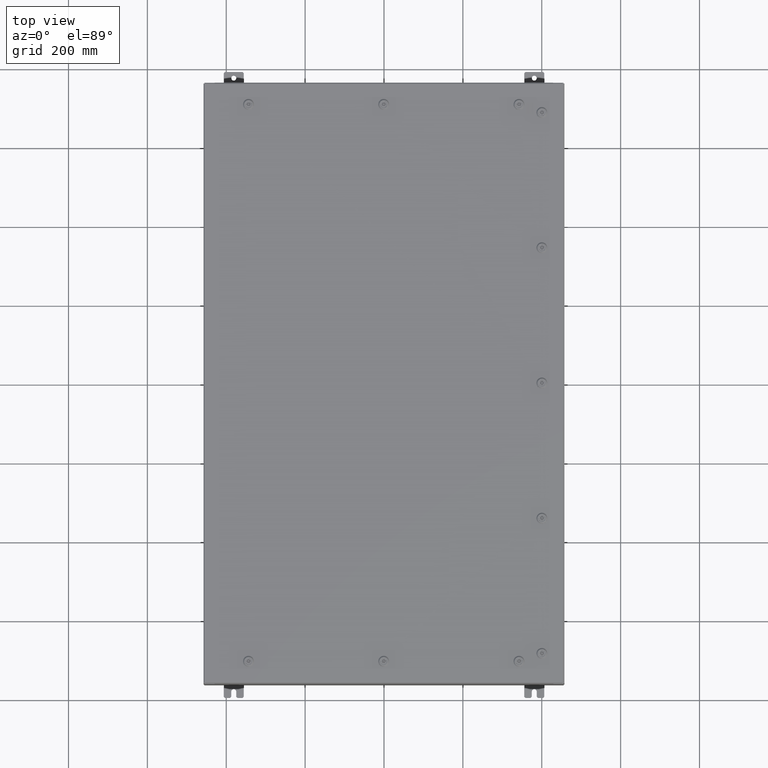
[diagram: clean part render]
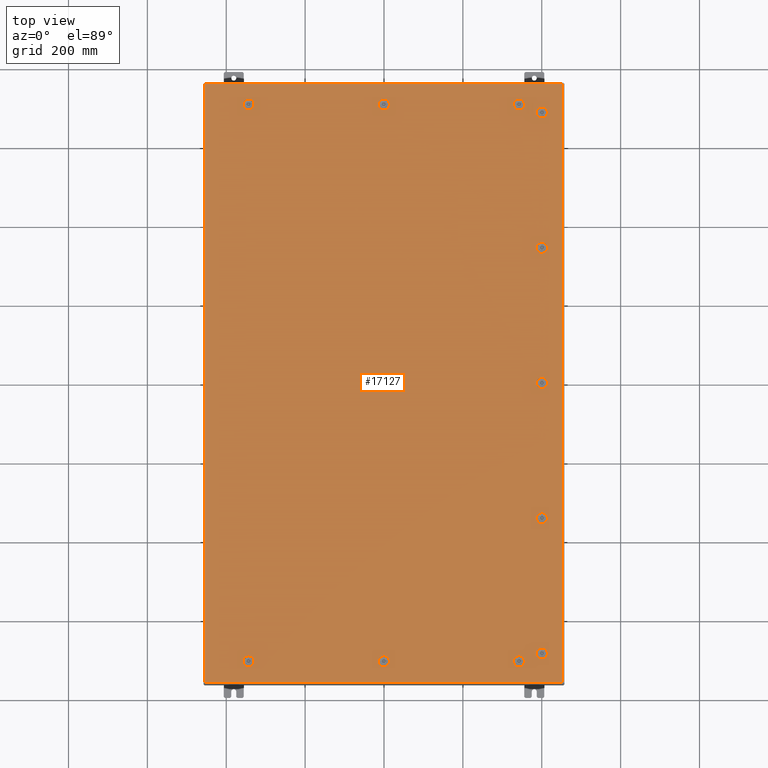
[diagram: same view with one face highlighted and labeled with its STEP entity id]
A machine part, top view. The second image highlights one B-rep face of the part: STEP entity #17127.
In plain terms, the highlighted planar face has unit normal (0, 0, -1).
Its self-contained STEP definition (entity closure, byte-faithful):
#36 = CARTESIAN_POINT ( 'NONE',  ( 15.39280000000001900, 27.19945237526790300, 0.0000000000000000000 ) ) ;
#152 = DIRECTION ( 'NONE',  ( 1.095739467627844000E-014, -1.000000000000000000, -6.982962677686306200E-015 ) ) ;
#209 = EDGE_CURVE ( 'NONE', #62549, #59928, #27118, .T. ) ;
#340 = AXIS2_PLACEMENT_3D ( 'NONE', #5066, #42577, #10474 ) ;
#358 = CIRCLE ( 'NONE', #11959, 0.4424999999999983400 ) ;
#553 = CARTESIAN_POINT ( 'NONE',  ( -17.84979999999999800, -29.84979999999999500, 1.946441695485787500E-015 ) ) ;
#595 = CARTESIAN_POINT ( 'NONE',  ( -13.05749999999998900, 27.78780000000000100, 0.0000000000000000000 ) ) ;
#1042 = LINE ( 'NONE', #36489, #40522 ) ;
#1228 = ORIENTED_EDGE ( 'NONE', *, *, #59585, .F. ) ;
#1241 = CARTESIAN_POINT ( 'NONE',  ( -17.84979999999998100, 29.84980000000000500, 4.166068190338001500E-015 ) ) ;
#1358 = AXIS2_PLACEMENT_3D ( 'NONE', #25242, #62558, #30596 ) ;
#1623 = AXIS2_PLACEMENT_3D ( 'NONE', #46235, #14171, #51555 ) ;
#1658 = DIRECTION ( 'NONE',  ( 0.0000000000000000000, 0.0000000000000000000, 1.000000000000000000 ) ) ;
#1687 = EDGE_CURVE ( 'NONE', #6727, #30833, #53024, .T. ) ;
#1705 = DIRECTION ( 'NONE',  ( -0.0000000000000000000, -6.982962677686266700E-015, 1.000000000000000000 ) ) ;
#1752 = LINE ( 'NONE', #16557, #11019 ) ;
#1816 = EDGE_LOOP ( 'NONE', ( #47234, #13913, #17812, #54301, #37466 ) ) ;
#1887 = CARTESIAN_POINT ( 'NONE',  ( 13.49999999999998600, -27.78780000000000800, -1.578617423656501800E-013 ) ) ;
#2322 = VERTEX_POINT ( 'NONE', #595 ) ;
#2544 = CARTESIAN_POINT ( 'NONE',  ( 13.30054762473209400, 28.18279999999999300, -9.287722765629296100E-014 ) ) ;
#2676 = DIRECTION ( 'NONE',  ( 0.0000000000000000000, 0.0000000000000000000, 1.000000000000000000 ) ) ;
#3014 = LINE ( 'NONE', #17230, #28202 ) ;
#3244 = DIRECTION ( 'NONE',  ( 0.0000000000000000000, 0.0000000000000000000, 1.000000000000000000 ) ) ;
#3266 = EDGE_CURVE ( 'NONE', #59928, #66190, #26927, .T. ) ;
#3736 = ORIENTED_EDGE ( 'NONE', *, *, #34164, .F. ) ;
#3991 = CARTESIAN_POINT ( 'NONE',  ( 13.30054762473209400, 28.18279999999999300, -9.287722765629296100E-014 ) ) ;
#4288 = ORIENTED_EDGE ( 'NONE', *, *, #31045, .F. ) ;
#4404 = ORIENTED_EDGE ( 'NONE', *, *, #44111, .F. ) ;
#4462 = CARTESIAN_POINT ( 'NONE',  ( 16.18280000000001100, -27.19945237526789600, -1.899327607900007900E-013 ) ) ;
#4602 = AXIS2_PLACEMENT_3D ( 'NONE', #1887, #39432, #7322 ) ;
#4802 = VERTEX_POINT ( 'NONE', #7682 ) ;
#4852 = CARTESIAN_POINT ( 'NONE',  ( 13.94249999999998500, -27.78780000000000800, -1.547717813807740000E-013 ) ) ;
#4965 = ORIENTED_EDGE ( 'NONE', *, *, #61527, .F. ) ;
#5019 = DIRECTION ( 'NONE',  ( -1.000000000000000000, 0.0000000000000000000, 6.982962677686269100E-015 ) ) ;
#5066 = CARTESIAN_POINT ( 'NONE',  ( 15.78780000000000600, 1.529834876451990400E-014, 0.0000000000000000000 ) ) ;
#5493 = DIRECTION ( 'NONE',  ( -1.000000000000000000, 1.095739467627836100E-014, 0.0000000000000000000 ) ) ;
#5836 = CARTESIAN_POINT ( 'NONE',  ( 15.39280000000002100, -13.69945237526790600, -9.566276464123621500E-014 ) ) ;
#5885 = CIRCLE ( 'NONE', #31582, 0.4424999999999983400 ) ;
#6119 = EDGE_CURVE ( 'NONE', #36924, #21264, #41801, .T. ) ;
#6373 = CARTESIAN_POINT ( 'NONE',  ( -0.1994523752678689600, 27.39280000000000500, 0.0000000000000000000 ) ) ;
#6420 = VECTOR ( 'NONE', #26826, 39.37007874015748100 ) ;
#6423 = VERTEX_POINT ( 'NONE', #38364 ) ;
#6658 = VERTEX_POINT ( 'NONE', #21091 ) ;
#6662 = VERTEX_POINT ( 'NONE', #66023 ) ;
#6727 = VERTEX_POINT ( 'NONE', #38147 ) ;
#6842 = CIRCLE ( 'NONE', #30556, 0.4424999999999972800 ) ;
#6849 = VERTEX_POINT ( 'NONE', #43309 ) ;
#6961 = FACE_BOUND ( 'NONE', #22829, .T. ) ;
#7038 = LINE ( 'NONE', #38637, #35569 ) ;
#7257 = DIRECTION ( 'NONE',  ( -0.0000000000000000000, -6.982962677686266700E-015, 1.000000000000000000 ) ) ;
#7260 = EDGE_CURVE ( 'NONE', #58493, #27125, #44228, .T. ) ;
#7269 = DIRECTION ( 'NONE',  ( 0.0000000000000000000, 1.000000000000000000, 6.982962677686270700E-015 ) ) ;
#7322 = DIRECTION ( 'NONE',  ( 1.000000000000000000, 0.0000000000000000000, 6.982962677686270700E-015 ) ) ;
#7455 = ORIENTED_EDGE ( 'NONE', *, *, #43060, .F. ) ;
#7539 = CARTESIAN_POINT ( 'NONE',  ( 1.529834876451987200E-014, 27.78780000000000100, 0.0000000000000000000 ) ) ;
#7583 = AXIS2_PLACEMENT_3D ( 'NONE', #34841, #2676, #40235 ) ;
#7682 = CARTESIAN_POINT ( 'NONE',  ( 16.18280000000000700, -13.69945237526790100, -9.566276464123617700E-014 ) ) ;
#7790 = CARTESIAN_POINT ( 'NONE',  ( 13.30054762473210400, -27.39280000000001500, -1.564962406004356200E-013 ) ) ;
#7948 = CIRCLE ( 'NONE', #54958, 0.4424999999999961700 ) ;
#7965 = CARTESIAN_POINT ( 'NONE',  ( 13.49999999999998600, 27.78780000000000100, -9.426999614876453700E-014 ) ) ;
#8122 = EDGE_CURVE ( 'NONE', #16469, #48698, #9785, .T. ) ;
#8305 = CARTESIAN_POINT ( 'NONE',  ( 16.18280000000000000, 0.1994523752679009100, 0.0000000000000000000 ) ) ;
#8818 = CARTESIAN_POINT ( 'NONE',  ( 13.30054762473209500, -28.18280000000000400, -1.620127811158077400E-013 ) ) ;
#9761 = DIRECTION ( 'NONE',  ( -1.095739467627836100E-014, -1.000000000000000000, 0.0000000000000000000 ) ) ;
#9785 = LINE ( 'NONE', #8818, #61612 ) ;
#9836 = AXIS2_PLACEMENT_3D ( 'NONE', #54811, #22808, #60165 ) ;
#9919 = CARTESIAN_POINT ( 'NONE',  ( 0.1994523752678995500, 27.39280000000000500, 0.0000000000000000000 ) ) ;
#9934 = CARTESIAN_POINT ( 'NONE',  ( 0.1994523752678995500, 27.39280000000000500, 0.0000000000000000000 ) ) ;
#9943 = EDGE_LOOP ( 'NONE', ( #37891, #3736, #53934, #64077, #35686 ) ) ;
#10474 = DIRECTION ( 'NONE',  ( 1.000000000000000000, 0.0000000000000000000, 0.0000000000000000000 ) ) ;
#10693 = CARTESIAN_POINT ( 'NONE',  ( 16.18280000000000700, -13.69945237526790100, -9.566276464123617700E-014 ) ) ;
#11019 = VECTOR ( 'NONE', #48368, 39.37007874015748100 ) ;
#11023 = EDGE_CURVE ( 'NONE', #13182, #6662, #7038, .T. ) ;
#11216 = ORIENTED_EDGE ( 'NONE', *, *, #21312, .F. ) ;
#11269 = CARTESIAN_POINT ( 'NONE',  ( 0.1994523752678995500, -27.39280000000000500, -2.493734682567286900E-013 ) ) ;
#11307 = CIRCLE ( 'NONE', #41366, 0.4424999999999983400 ) ;
#11504 = LINE ( 'NONE', #23507, #66612 ) ;
#11959 = AXIS2_PLACEMENT_3D ( 'NONE', #23178, #60543, #28574 ) ;
#11998 = FACE_BOUND ( 'NONE', #21721, .T. ) ;
#12360 = VERTEX_POINT ( 'NONE', #36509 ) ;
#12444 = EDGE_LOOP ( 'NONE', ( #50582, #57868, #54092, #44508, #1228 ) ) ;
#12588 = VERTEX_POINT ( 'NONE', #60214 ) ;
#12619 = DIRECTION ( 'NONE',  ( 0.0000000000000000000, 0.0000000000000000000, 1.000000000000000000 ) ) ;
#12677 = VECTOR ( 'NONE', #51803, 39.37007874015748100 ) ;
#12704 = LINE ( 'NONE', #10693, #41237 ) ;
#12906 = EDGE_CURVE ( 'NONE', #12588, #37703, #34941, .T. ) ;
#12932 = DIRECTION ( 'NONE',  ( 1.000000000000000000, 0.0000000000000000000, 0.0000000000000000000 ) ) ;
#13053 = EDGE_CURVE ( 'NONE', #66190, #6423, #3014, .T. ) ;
#13079 = VERTEX_POINT ( 'NONE', #54816 ) ;
#13127 = AXIS2_PLACEMENT_3D ( 'NONE', #60734, #28782, #66060 ) ;
#13182 = VERTEX_POINT ( 'NONE', #11269 ) ;
#13356 = DIRECTION ( 'NONE',  ( -1.000000000000000000, 0.0000000000000000000, 6.982962677686270700E-015 ) ) ;
#13469 = CARTESIAN_POINT ( 'NONE',  ( -13.30054762473210200, 27.39280000000000500, 0.0000000000000000000 ) ) ;
#13625 = LINE ( 'NONE', #63338, #27850 ) ;
#13913 = ORIENTED_EDGE ( 'NONE', *, *, #50103, .F. ) ;
#14142 = LINE ( 'NONE', #9934, #40968 ) ;
#14171 = DIRECTION ( 'NONE',  ( -0.0000000000000000000, -6.982962677686266700E-015, 1.000000000000000000 ) ) ;
#14221 = ORIENTED_EDGE ( 'NONE', *, *, #58153, .F. ) ;
#14297 = CARTESIAN_POINT ( 'NONE',  ( 15.39280000000001400, 26.80054762473213300, 0.0000000000000000000 ) ) ;
#14399 = VERTEX_POINT ( 'NONE', #48638 ) ;
#14663 = EDGE_CURVE ( 'NONE', #38152, #25227, #36488, .T. ) ;
#14863 = CARTESIAN_POINT ( 'NONE',  ( 0.1994523752679054600, 28.18279999999999300, 0.0000000000000000000 ) ) ;
#14866 = AXIS2_PLACEMENT_3D ( 'NONE', #56125, #67446, #7269 ) ;
#14938 = EDGE_CURVE ( 'NONE', #48698, #19499, #29739, .T. ) ;
#15068 = CARTESIAN_POINT ( 'NONE',  ( 15.39280000000001400, 13.30054762473213400, 0.0000000000000000000 ) ) ;
#15362 = CARTESIAN_POINT ( 'NONE',  ( 16.18280000000001100, -27.19945237526789600, -1.899327607900007900E-013 ) ) ;
#15442 = DIRECTION ( 'NONE',  ( -1.000000000000000000, -1.095739467627832000E-014, 6.982962677686228800E-015 ) ) ;
#15485 = AXIS2_PLACEMENT_3D ( 'NONE', #35401, #3244, #40797 ) ;
#15582 = CARTESIAN_POINT ( 'NONE',  ( 17.84979999999999800, 29.84980000000001300, 1.946441695485787500E-015 ) ) ;
#15732 = CARTESIAN_POINT ( 'NONE',  ( -13.30054762473210200, 27.39280000000000500, 0.0000000000000000000 ) ) ;
#16407 = VECTOR ( 'NONE', #23777, 39.37007874015748100 ) ;
#16469 = VERTEX_POINT ( 'NONE', #45503 ) ;
#16557 = CARTESIAN_POINT ( 'NONE',  ( -13.30054762473209400, 28.18279999999999300, 0.0000000000000000000 ) ) ;
#16578 = ORIENTED_EDGE ( 'NONE', *, *, #24363, .F. ) ;
#16726 = CARTESIAN_POINT ( 'NONE',  ( 13.69945237526786700, 28.18280000000000000, 0.0000000000000000000 ) ) ;
#17002 = DIRECTION ( 'NONE',  ( -0.0000000000000000000, -6.982962677686266700E-015, 1.000000000000000000 ) ) ;
#17003 = CARTESIAN_POINT ( 'NONE',  ( -17.84979999999998100, 29.84980000000000500, 4.166068190338001500E-015 ) ) ;
#17127 = ADVANCED_FACE ( 'NONE', ( #37166, #51331, #65456, #11998, #63815, #49673, #35488, #21216, #6961, #62129, #48003, #33794 ), #24234, .F. ) ;
#17230 = CARTESIAN_POINT ( 'NONE',  ( 17.84979999999999800, -29.84979999999998800, -2.048885995248197400E-016 ) ) ;
#17384 = VERTEX_POINT ( 'NONE', #9919 ) ;
#17679 = CIRCLE ( 'NONE', #29326, 0.4424999999999961700 ) ;
#17697 = DIRECTION ( 'NONE',  ( 0.0000000000000000000, 0.0000000000000000000, 1.000000000000000000 ) ) ;
#17716 = DIRECTION ( 'NONE',  ( 1.000000000000000000, 1.095739467627832000E-014, 7.785697190085955000E-029 ) ) ;
#17812 = ORIENTED_EDGE ( 'NONE', *, *, #14938, .F. ) ;
#17895 = ORIENTED_EDGE ( 'NONE', *, *, #1687, .F. ) ;
#18259 = CARTESIAN_POINT ( 'NONE',  ( -0.1994523752678657400, -28.18280000000000400, 0.0000000000000000000 ) ) ;
#18379 = EDGE_CURVE ( 'NONE', #27635, #16469, #32829, .T. ) ;
#18391 = VERTEX_POINT ( 'NONE', #18259 ) ;
#18478 = LINE ( 'NONE', #15582, #45288 ) ;
#18514 = CARTESIAN_POINT ( 'NONE',  ( 16.18280000000000700, 26.80054762473213300, 0.0000000000000000000 ) ) ;
#18870 = DIRECTION ( 'NONE',  ( -5.478697338139280000E-015, 1.000000000000000000, -0.0000000000000000000 ) ) ;
#19239 = CARTESIAN_POINT ( 'NONE',  ( 13.69945237526787100, -27.39280000000001500, 0.0000000000000000000 ) ) ;
#19414 = ORIENTED_EDGE ( 'NONE', *, *, #20105, .T. ) ;
#19499 = VERTEX_POINT ( 'NONE', #4852 ) ;
#19583 = CARTESIAN_POINT ( 'NONE',  ( 15.39280000000002200, -27.19945237526790300, -1.899327607900007900E-013 ) ) ;
#19733 = VECTOR ( 'NONE', #17716, 39.37007874015748100 ) ;
#19822 = EDGE_CURVE ( 'NONE', #27125, #30430, #17679, .T. ) ;
#19887 = CIRCLE ( 'NONE', #24604, 0.4424999999999983400 ) ;
#19927 = CARTESIAN_POINT ( 'NONE',  ( 0.1994523752679067700, -28.18279999999999300, -2.548900087721007400E-013 ) ) ;
#20040 = EDGE_CURVE ( 'NONE', #29317, #6849, #5885, .T. ) ;
#20105 = EDGE_CURVE ( 'NONE', #6423, #62549, #18478, .T. ) ;
#20323 = CIRCLE ( 'NONE', #67034, 0.4424999999999983400 ) ;
#20462 = EDGE_LOOP ( 'NONE', ( #61124, #17895, #61023, #67328 ) ) ;
#20711 = DIRECTION ( 'NONE',  ( 1.000000000000000000, -0.0000000000000000000, -0.0000000000000000000 ) ) ;
#20856 = DIRECTION ( 'NONE',  ( 1.000000000000000000, 0.0000000000000000000, -6.982962677686306200E-015 ) ) ;
#21091 = CARTESIAN_POINT ( 'NONE',  ( -13.69945237526787100, -27.39280000000001900, -2.493734682567286400E-013 ) ) ;
#21151 = CARTESIAN_POINT ( 'NONE',  ( 0.4425000000000125500, 27.78780000000000100, 0.0000000000000000000 ) ) ;
#21216 = FACE_BOUND ( 'NONE', #9943, .T. ) ;
#21264 = VERTEX_POINT ( 'NONE', #15362 ) ;
#21312 = EDGE_CURVE ( 'NONE', #17384, #53570, #23509, .T. ) ;
#21433 = CARTESIAN_POINT ( 'NONE',  ( 13.69945237526786900, 27.39280000000000500, -9.566276464123603800E-014 ) ) ;
#21721 = EDGE_LOOP ( 'NONE', ( #4288, #47137, #60482, #14221 ) ) ;
#21778 = ORIENTED_EDGE ( 'NONE', *, *, #48891, .F. ) ;
#21787 = CARTESIAN_POINT ( 'NONE',  ( 15.39280000000002200, -27.19945237526790300, -1.899327607900008200E-013 ) ) ;
#22050 = EDGE_CURVE ( 'NONE', #18391, #29317, #30144, .T. ) ;
#22808 = DIRECTION ( 'NONE',  ( -6.982962677686266700E-015, -6.982962677686266700E-015, 1.000000000000000000 ) ) ;
#22829 = EDGE_LOOP ( 'NONE', ( #52168, #54886, #57019, #53463, #56916 ) ) ;
#23178 = CARTESIAN_POINT ( 'NONE',  ( -13.49999999999998600, 27.78780000000000100, 0.0000000000000000000 ) ) ;
#23465 = CARTESIAN_POINT ( 'NONE',  ( 15.78780000000001300, -13.50000000000001800, -9.426999614876466400E-014 ) ) ;
#23507 = CARTESIAN_POINT ( 'NONE',  ( 16.18280000000000700, 13.69945237526790100, 0.0000000000000000000 ) ) ;
#23509 = CIRCLE ( 'NONE', #52658, 0.4424999999999972800 ) ;
#23768 = CARTESIAN_POINT ( 'NONE',  ( -13.30054762473209500, -28.18280000000000700, -2.548900087721007400E-013 ) ) ;
#23771 = ORIENTED_EDGE ( 'NONE', *, *, #13053, .T. ) ;
#23777 = DIRECTION ( 'NONE',  ( -1.095739467627838000E-014, -1.000000000000000000, 0.0000000000000000000 ) ) ;
#23783 = DIRECTION ( 'NONE',  ( 0.0000000000000000000, 0.0000000000000000000, 1.000000000000000000 ) ) ;
#24019 = DIRECTION ( 'NONE',  ( -0.0000000000000000000, -6.982962677686266700E-015, 1.000000000000000000 ) ) ;
#24234 = PLANE ( 'NONE',  #52048 ) ;
#24293 = EDGE_CURVE ( 'NONE', #4802, #6727, #12704, .T. ) ;
#24363 = EDGE_CURVE ( 'NONE', #40947, #66882, #1752, .T. ) ;
#24604 = AXIS2_PLACEMENT_3D ( 'NONE', #49040, #17002, #54373 ) ;
#24710 = EDGE_CURVE ( 'NONE', #34340, #27635, #56156, .T. ) ;
#24800 = CARTESIAN_POINT ( 'NONE',  ( 15.78780000000001000, 27.00000000000001400, 0.0000000000000000000 ) ) ;
#25178 = ORIENTED_EDGE ( 'NONE', *, *, #67378, .F. ) ;
#25227 = VERTEX_POINT ( 'NONE', #6373 ) ;
#25242 = CARTESIAN_POINT ( 'NONE',  ( 15.78780000000001500, -27.00000000000001400, -1.885399922975292500E-013 ) ) ;
#25527 = VECTOR ( 'NONE', #45560, 39.37007874015748100 ) ;
#25563 = DIRECTION ( 'NONE',  ( 5.478697338139280000E-015, 1.000000000000000000, 6.982962677686382700E-015 ) ) ;
#25604 = CIRCLE ( 'NONE', #64321, 0.4424999999999961700 ) ;
#26014 = DIRECTION ( 'NONE',  ( -1.000000000000000000, 0.0000000000000000000, 7.785697190086082800E-029 ) ) ;
#26099 = DIRECTION ( 'NONE',  ( -0.0000000000000000000, -6.982962677686266700E-015, 1.000000000000000000 ) ) ;
#26335 = EDGE_LOOP ( 'NONE', ( #35688, #63938, #34514, #44703, #11216 ) ) ;
#26351 = DIRECTION ( 'NONE',  ( 0.0000000000000000000, 0.0000000000000000000, 1.000000000000000000 ) ) ;
#26445 = EDGE_CURVE ( 'NONE', #56153, #36433, #32654, .T. ) ;
#26704 = ORIENTED_EDGE ( 'NONE', *, *, #65097, .F. ) ;
#26826 = DIRECTION ( 'NONE',  ( -1.095739467627844000E-014, -1.000000000000000000, 0.0000000000000000000 ) ) ;
#26841 = CARTESIAN_POINT ( 'NONE',  ( 0.1994523752679067700, 28.18279999999999300, 0.0000000000000000000 ) ) ;
#26927 = LINE ( 'NONE', #553, #12677 ) ;
#27013 = VERTEX_POINT ( 'NONE', #36462 ) ;
#27118 = LINE ( 'NONE', #1241, #39696 ) ;
#27125 = VERTEX_POINT ( 'NONE', #47650 ) ;
#27329 = ORIENTED_EDGE ( 'NONE', *, *, #3266, .T. ) ;
#27635 = VERTEX_POINT ( 'NONE', #7790 ) ;
#27731 = CARTESIAN_POINT ( 'NONE',  ( -13.30054762473210400, -27.39280000000001900, -2.493734682567286900E-013 ) ) ;
#27850 = VECTOR ( 'NONE', #26014, 39.37007874015748100 ) ;
#28085 = EDGE_CURVE ( 'NONE', #25227, #17384, #14142, .T. ) ;
#28202 = VECTOR ( 'NONE', #44151, 39.37007874015748100 ) ;
#28343 = CARTESIAN_POINT ( 'NONE',  ( -13.69945237526786900, -28.18280000000001100, 0.0000000000000000000 ) ) ;
#28574 = DIRECTION ( 'NONE',  ( 1.000000000000000000, 0.0000000000000000000, 0.0000000000000000000 ) ) ;
#28648 = CARTESIAN_POINT ( 'NONE',  ( 13.49999999999998600, 27.78780000000000100, -9.426999614876453700E-014 ) ) ;
#28764 = AXIS2_PLACEMENT_3D ( 'NONE', #33825, #1658, #39203 ) ;
#28782 = DIRECTION ( 'NONE',  ( -6.982962677686266700E-015, -6.982962677686266700E-015, 1.000000000000000000 ) ) ;
#28860 = DIRECTION ( 'NONE',  ( 0.0000000000000000000, 1.000000000000000000, 6.982962677686269100E-015 ) ) ;
#28904 = CIRCLE ( 'NONE', #56850, 0.4424999999999961700 ) ;
#28942 = DIRECTION ( 'NONE',  ( 6.982962677686266700E-015, -0.0000000000000000000, 1.000000000000000000 ) ) ;
#29030 = VERTEX_POINT ( 'NONE', #60393 ) ;
#29299 = ORIENTED_EDGE ( 'NONE', *, *, #53311, .F. ) ;
#29317 = VERTEX_POINT ( 'NONE', #62908 ) ;
#29326 = AXIS2_PLACEMENT_3D ( 'NONE', #60897, #28942, #66222 ) ;
#29363 = VERTEX_POINT ( 'NONE', #15068 ) ;
#29380 = LINE ( 'NONE', #48686, #31043 ) ;
#29514 = VERTEX_POINT ( 'NONE', #68901 ) ;
#29614 = DIRECTION ( 'NONE',  ( -1.000000000000000000, 0.0000000000000000000, -0.0000000000000000000 ) ) ;
#29682 = CARTESIAN_POINT ( 'NONE',  ( 16.18280000000001500, -26.80054762473213300, -1.871472238050577400E-013 ) ) ;
#29739 = CIRCLE ( 'NONE', #9836, 0.4424999999999983400 ) ;
#30144 = LINE ( 'NONE', #19927, #58584 ) ;
#30172 = DIRECTION ( 'NONE',  ( 1.000000000000000000, 0.0000000000000000000, 0.0000000000000000000 ) ) ;
#30430 = VERTEX_POINT ( 'NONE', #16726 ) ;
#30462 = CARTESIAN_POINT ( 'NONE',  ( 1.529834876451987200E-014, -27.78780000000000100, -2.521317385144146900E-013 ) ) ;
#30556 = AXIS2_PLACEMENT_3D ( 'NONE', #7539, #45031, #12932 ) ;
#30596 = DIRECTION ( 'NONE',  ( 0.0000000000000000000, 1.000000000000000000, 6.982962677686270700E-015 ) ) ;
#30745 = EDGE_CURVE ( 'NONE', #6658, #38730, #19887, .T. ) ;
#30833 = VERTEX_POINT ( 'NONE', #54595 ) ;
#30882 = CARTESIAN_POINT ( 'NONE',  ( -13.49999999999998600, 27.78780000000000100, 0.0000000000000000000 ) ) ;
#31043 = VECTOR ( 'NONE', #20856, 39.37007874015748100 ) ;
#31045 = EDGE_CURVE ( 'NONE', #13079, #39965, #11504, .T. ) ;
#31582 = AXIS2_PLACEMENT_3D ( 'NONE', #58087, #26099, #63420 ) ;
#31972 = VECTOR ( 'NONE', #15442, 39.37007874015748100 ) ;
#32447 = LINE ( 'NONE', #21787, #59176 ) ;
#32567 = AXIS2_PLACEMENT_3D ( 'NONE', #28648, #46121, #5019 ) ;
#32654 = CIRCLE ( 'NONE', #340, 0.4424999999999983400 ) ;
#32757 = DIRECTION ( 'NONE',  ( 1.095739467627838000E-014, -1.000000000000000000, -6.982962677686269100E-015 ) ) ;
#32829 = CIRCLE ( 'NONE', #13127, 0.4424999999999961700 ) ;
#33017 = CARTESIAN_POINT ( 'NONE',  ( -13.30054762473209400, 28.18279999999999300, 0.0000000000000000000 ) ) ;
#33794 = FACE_OUTER_BOUND ( 'NONE', #53352, .T. ) ;
#33825 = CARTESIAN_POINT ( 'NONE',  ( 15.78780000000001000, 13.50000000000001800, 0.0000000000000000000 ) ) ;
#33870 = CARTESIAN_POINT ( 'NONE',  ( 1.529834876451987200E-014, -27.78780000000000100, -2.521317385144146900E-013 ) ) ;
#34011 = LINE ( 'NONE', #61129, #16407 ) ;
#34164 = EDGE_CURVE ( 'NONE', #6662, #18391, #11307, .T. ) ;
#34340 = VERTEX_POINT ( 'NONE', #19239 ) ;
#34514 = ORIENTED_EDGE ( 'NONE', *, *, #62437, .F. ) ;
#34765 = LINE ( 'NONE', #13469, #25527 ) ;
#34841 = CARTESIAN_POINT ( 'NONE',  ( 1.529834876451987200E-014, 27.78780000000000100, 0.0000000000000000000 ) ) ;
#34941 = LINE ( 'NONE', #36, #6420 ) ;
#35049 = VERTEX_POINT ( 'NONE', #14863 ) ;
#35401 = CARTESIAN_POINT ( 'NONE',  ( 15.78780000000000600, 1.529834876451990400E-014, 0.0000000000000000000 ) ) ;
#35488 = FACE_BOUND ( 'NONE', #12444, .T. ) ;
#35567 = AXIS2_PLACEMENT_3D ( 'NONE', #39362, #7257, #44749 ) ;
#35569 = VECTOR ( 'NONE', #39315, 39.37007874015748100 ) ;
#35621 = ORIENTED_EDGE ( 'NONE', *, *, #12906, .F. ) ;
#35686 = ORIENTED_EDGE ( 'NONE', *, *, #20040, .F. ) ;
#35688 = ORIENTED_EDGE ( 'NONE', *, *, #28085, .F. ) ;
#35885 = VERTEX_POINT ( 'NONE', #27731 ) ;
#35886 = DIRECTION ( 'NONE',  ( 0.0000000000000000000, 1.000000000000000000, 6.982962677686270700E-015 ) ) ;
#36315 = DIRECTION ( 'NONE',  ( 1.000000000000000000, 0.0000000000000000000, 0.0000000000000000000 ) ) ;
#36433 = VERTEX_POINT ( 'NONE', #59181 ) ;
#36462 = CARTESIAN_POINT ( 'NONE',  ( 15.39280000000001900, -26.80054762473213300, 0.0000000000000000000 ) ) ;
#36488 = CIRCLE ( 'NONE', #7583, 0.4424999999999969000 ) ;
#36489 = CARTESIAN_POINT ( 'NONE',  ( 15.39280000000001400, 0.1994523752679053800, 0.0000000000000000000 ) ) ;
#36509 = CARTESIAN_POINT ( 'NONE',  ( 15.39280000000001900, 13.69945237526790600, 0.0000000000000000000 ) ) ;
#36924 = VERTEX_POINT ( 'NONE', #19583 ) ;
#37166 = FACE_BOUND ( 'NONE', #63649, .T. ) ;
#37288 = CIRCLE ( 'NONE', #57222, 0.4424999999999983400 ) ;
#37466 = ORIENTED_EDGE ( 'NONE', *, *, #18379, .F. ) ;
#37467 = EDGE_CURVE ( 'NONE', #45847, #29030, #61861, .T. ) ;
#37666 = CIRCLE ( 'NONE', #15485, 0.4424999999999983400 ) ;
#37703 = VERTEX_POINT ( 'NONE', #14297 ) ;
#37805 = ORIENTED_EDGE ( 'NONE', *, *, #65513, .F. ) ;
#37891 = ORIENTED_EDGE ( 'NONE', *, *, #22050, .F. ) ;
#38147 = CARTESIAN_POINT ( 'NONE',  ( 16.18280000000001100, -13.30054762473213300, -9.287722765629316300E-014 ) ) ;
#38152 = VERTEX_POINT ( 'NONE', #55610 ) ;
#38364 = CARTESIAN_POINT ( 'NONE',  ( 17.84979999999999800, 29.84980000000001300, 1.946441695485787500E-015 ) ) ;
#38637 = CARTESIAN_POINT ( 'NONE',  ( 0.1994523752678995500, -27.39280000000000500, -2.493734682567286900E-013 ) ) ;
#38730 = VERTEX_POINT ( 'NONE', #28343 ) ;
#38871 = VERTEX_POINT ( 'NONE', #18514 ) ;
#39203 = DIRECTION ( 'NONE',  ( 1.000000000000000000, 0.0000000000000000000, 0.0000000000000000000 ) ) ;
#39255 = DIRECTION ( 'NONE',  ( 0.0000000000000000000, 1.000000000000000000, 6.982962677686270700E-015 ) ) ;
#39315 = DIRECTION ( 'NONE',  ( -1.000000000000000000, 0.0000000000000000000, 7.785697190086061500E-029 ) ) ;
#39362 = CARTESIAN_POINT ( 'NONE',  ( -13.49999999999998600, -27.78780000000001500, -2.521317385144146900E-013 ) ) ;
#39432 = DIRECTION ( 'NONE',  ( -6.982962677686266700E-015, -6.982962677686266700E-015, 1.000000000000000000 ) ) ;
#39696 = VECTOR ( 'NONE', #55270, 39.37007874015748100 ) ;
#39856 = VECTOR ( 'NONE', #61797, 39.37007874015748100 ) ;
#39954 = CARTESIAN_POINT ( 'NONE',  ( 13.30054762473210400, -27.39280000000001500, -1.564962406004356200E-013 ) ) ;
#39965 = VERTEX_POINT ( 'NONE', #42044 ) ;
#40235 = DIRECTION ( 'NONE',  ( 1.000000000000000000, 0.0000000000000000000, 0.0000000000000000000 ) ) ;
#40522 = VECTOR ( 'NONE', #9761, 39.37007874015748100 ) ;
#40523 = ORIENTED_EDGE ( 'NONE', *, *, #26445, .F. ) ;
#40777 = EDGE_CURVE ( 'NONE', #27013, #36924, #32447, .T. ) ;
#40797 = DIRECTION ( 'NONE',  ( 1.000000000000000000, 0.0000000000000000000, 0.0000000000000000000 ) ) ;
#40947 = VERTEX_POINT ( 'NONE', #33017 ) ;
#40968 = VECTOR ( 'NONE', #20711, 39.37007874015748100 ) ;
#41237 = VECTOR ( 'NONE', #57673, 39.37007874015748100 ) ;
#41366 = AXIS2_PLACEMENT_3D ( 'NONE', #33870, #1705, #39255 ) ;
#41801 = CIRCLE ( 'NONE', #45111, 0.4424999999999983400 ) ;
#41897 = VERTEX_POINT ( 'NONE', #57786 ) ;
#42044 = CARTESIAN_POINT ( 'NONE',  ( 16.18280000000000700, 13.69945237526790100, 0.0000000000000000000 ) ) ;
#42324 = EDGE_CURVE ( 'NONE', #29363, #13079, #59893, .T. ) ;
#42340 = EDGE_LOOP ( 'NONE', ( #29299, #4404, #16578, #37805, #46364 ) ) ;
#42496 = DIRECTION ( 'NONE',  ( -1.000000000000000000, -0.0000000000000000000, -0.0000000000000000000 ) ) ;
#42577 = DIRECTION ( 'NONE',  ( 0.0000000000000000000, 0.0000000000000000000, 1.000000000000000000 ) ) ;
#42809 = EDGE_CURVE ( 'NONE', #38730, #67905, #62351, .T. ) ;
#42987 = EDGE_CURVE ( 'NONE', #12360, #29363, #34011, .T. ) ;
#43060 = EDGE_CURVE ( 'NONE', #38871, #14399, #43253, .T. ) ;
#43253 = LINE ( 'NONE', #50888, #59051 ) ;
#43309 = CARTESIAN_POINT ( 'NONE',  ( 0.4425000000000125500, -27.78780000000000100, -2.521317385144146900E-013 ) ) ;
#43411 = CARTESIAN_POINT ( 'NONE',  ( 17.84979999999999800, -29.84979999999998800, -2.048885995248197400E-016 ) ) ;
#43721 = VECTOR ( 'NONE', #32757, 39.37007874015748100 ) ;
#43892 = AXIS2_PLACEMENT_3D ( 'NONE', #23465, #60815, #28860 ) ;
#44092 = VERTEX_POINT ( 'NONE', #67918 ) ;
#44111 = EDGE_CURVE ( 'NONE', #66882, #29514, #28904, .T. ) ;
#44151 = DIRECTION ( 'NONE',  ( 0.0000000000000000000, 1.000000000000000000, 0.0000000000000000000 ) ) ;
#44191 = CARTESIAN_POINT ( 'NONE',  ( -13.30054762473209500, -28.18280000000000700, -2.548900087721007400E-013 ) ) ;
#44228 = CIRCLE ( 'NONE', #32567, 0.4424999999999961700 ) ;
#44508 = ORIENTED_EDGE ( 'NONE', *, *, #53412, .F. ) ;
#44513 = CIRCLE ( 'NONE', #1358, 0.4424999999999983400 ) ;
#44703 = ORIENTED_EDGE ( 'NONE', *, *, #47722, .F. ) ;
#44727 = CARTESIAN_POINT ( 'NONE',  ( 15.78780000000001000, 13.50000000000001800, 0.0000000000000000000 ) ) ;
#44749 = DIRECTION ( 'NONE',  ( 0.0000000000000000000, 1.000000000000000000, 6.982962677686270700E-015 ) ) ;
#45031 = DIRECTION ( 'NONE',  ( 0.0000000000000000000, 0.0000000000000000000, 1.000000000000000000 ) ) ;
#45111 = AXIS2_PLACEMENT_3D ( 'NONE', #51055, #24019, #49525 ) ;
#45288 = VECTOR ( 'NONE', #42496, 39.37007874015748100 ) ;
#45298 = CIRCLE ( 'NONE', #28764, 0.4424999999999961700 ) ;
#45455 = DIRECTION ( 'NONE',  ( 6.982962677686266700E-015, -0.0000000000000000000, 1.000000000000000000 ) ) ;
#45503 = CARTESIAN_POINT ( 'NONE',  ( 13.30054762473209500, -28.18280000000000400, -1.620127811158077400E-013 ) ) ;
#45560 = DIRECTION ( 'NONE',  ( 1.000000000000000000, -0.0000000000000000000, -0.0000000000000000000 ) ) ;
#45566 = DIRECTION ( 'NONE',  ( 0.0000000000000000000, 0.0000000000000000000, -1.000000000000000000 ) ) ;
#45847 = VERTEX_POINT ( 'NONE', #3991 ) ;
#46121 = DIRECTION ( 'NONE',  ( 6.982962677686266700E-015, -0.0000000000000000000, 1.000000000000000000 ) ) ;
#46223 = LINE ( 'NONE', #2544, #31972 ) ;
#46235 = CARTESIAN_POINT ( 'NONE',  ( -13.49999999999998600, -27.78780000000001500, -2.521317385144146900E-013 ) ) ;
#46364 = ORIENTED_EDGE ( 'NONE', *, *, #64760, .F. ) ;
#46594 = EDGE_LOOP ( 'NONE', ( #50635, #40523, #25178, #4965 ) ) ;
#46983 = VECTOR ( 'NONE', #25563, 39.37007874015748100 ) ;
#47137 = ORIENTED_EDGE ( 'NONE', *, *, #42324, .F. ) ;
#47162 = CARTESIAN_POINT ( 'NONE',  ( 16.18280000000000000, 0.1994523752679009100, 0.0000000000000000000 ) ) ;
#47234 = ORIENTED_EDGE ( 'NONE', *, *, #24710, .F. ) ;
#47650 = CARTESIAN_POINT ( 'NONE',  ( 13.94249999999998300, 27.78780000000000100, -9.735995713364067600E-014 ) ) ;
#47722 = EDGE_CURVE ( 'NONE', #53570, #35049, #6842, .T. ) ;
#47878 = CARTESIAN_POINT ( 'NONE',  ( -17.84979999999999800, -29.84979999999999500, 1.946441695485787500E-015 ) ) ;
#48003 = FACE_BOUND ( 'NONE', #26335, .T. ) ;
#48368 = DIRECTION ( 'NONE',  ( -1.000000000000000000, 1.095739467627832000E-014, 0.0000000000000000000 ) ) ;
#48385 = EDGE_CURVE ( 'NONE', #30833, #50458, #57843, .T. ) ;
#48638 = CARTESIAN_POINT ( 'NONE',  ( 16.18280000000000700, 27.19945237526789600, 0.0000000000000000000 ) ) ;
#48686 = CARTESIAN_POINT ( 'NONE',  ( 13.30054762473210200, 27.39280000000000500, -9.287722765629301200E-014 ) ) ;
#48698 = VERTEX_POINT ( 'NONE', #61641 ) ;
#48722 = VERTEX_POINT ( 'NONE', #29682 ) ;
#48891 = EDGE_CURVE ( 'NONE', #48722, #27013, #44513, .T. ) ;
#49040 = CARTESIAN_POINT ( 'NONE',  ( -13.49999999999998600, -27.78780000000001500, -2.521317385144146900E-013 ) ) ;
#49525 = DIRECTION ( 'NONE',  ( 0.0000000000000000000, 1.000000000000000000, 6.982962677686270700E-015 ) ) ;
#49673 = FACE_BOUND ( 'NONE', #1816, .T. ) ;
#49737 = CARTESIAN_POINT ( 'NONE',  ( -13.49999999999998600, 27.78780000000000100, 0.0000000000000000000 ) ) ;
#50058 = DIRECTION ( 'NONE',  ( 1.000000000000000000, 0.0000000000000000000, 0.0000000000000000000 ) ) ;
#50103 = EDGE_CURVE ( 'NONE', #19499, #34340, #64373, .T. ) ;
#50106 = VECTOR ( 'NONE', #5493, 39.37007874015748100 ) ;
#50458 = VERTEX_POINT ( 'NONE', #62189 ) ;
#50582 = ORIENTED_EDGE ( 'NONE', *, *, #42809, .F. ) ;
#50624 = EDGE_CURVE ( 'NONE', #21264, #48722, #64455, .T. ) ;
#50635 = ORIENTED_EDGE ( 'NONE', *, *, #52169, .F. ) ;
#50728 = VERTEX_POINT ( 'NONE', #15732 ) ;
#50748 = EDGE_CURVE ( 'NONE', #29030, #58493, #29380, .T. ) ;
#50888 = CARTESIAN_POINT ( 'NONE',  ( 16.18280000000000700, 27.19945237526789600, 0.0000000000000000000 ) ) ;
#50891 = CARTESIAN_POINT ( 'NONE',  ( 0.0000000000000000000, 0.0000000000000000000, 0.0000000000000000000 ) ) ;
#51013 = CIRCLE ( 'NONE', #35567, 0.4424999999999983400 ) ;
#51055 = CARTESIAN_POINT ( 'NONE',  ( 15.78780000000001500, -27.00000000000001400, -1.885399922975292500E-013 ) ) ;
#51331 = FACE_BOUND ( 'NONE', #20462, .T. ) ;
#51555 = DIRECTION ( 'NONE',  ( 0.0000000000000000000, 1.000000000000000000, 6.982962677686270700E-015 ) ) ;
#51656 = DIRECTION ( 'NONE',  ( 1.000000000000000000, -1.095739467627832000E-014, 6.982962677686152300E-015 ) ) ;
#51803 = DIRECTION ( 'NONE',  ( 1.000000000000000000, -0.0000000000000000000, -0.0000000000000000000 ) ) ;
#51977 = DIRECTION ( 'NONE',  ( 1.000000000000000000, 1.095739467627836100E-014, 7.785697190085984100E-029 ) ) ;
#52048 = AXIS2_PLACEMENT_3D ( 'NONE', #50891, #45566, #29614 ) ;
#52114 = EDGE_CURVE ( 'NONE', #14399, #12588, #25604, .T. ) ;
#52168 = ORIENTED_EDGE ( 'NONE', *, *, #56720, .F. ) ;
#52169 = EDGE_CURVE ( 'NONE', #36433, #52325, #66452, .T. ) ;
#52325 = VERTEX_POINT ( 'NONE', #47162 ) ;
#52658 = AXIS2_PLACEMENT_3D ( 'NONE', #58333, #26351, #63669 ) ;
#53024 = CIRCLE ( 'NONE', #14866, 0.4424999999999983400 ) ;
#53311 = EDGE_CURVE ( 'NONE', #29514, #50728, #34765, .T. ) ;
#53352 = EDGE_LOOP ( 'NONE', ( #27329, #23771, #19414, #58359 ) ) ;
#53412 = EDGE_CURVE ( 'NONE', #44092, #35885, #59759, .T. ) ;
#53463 = ORIENTED_EDGE ( 'NONE', *, *, #50748, .F. ) ;
#53570 = VERTEX_POINT ( 'NONE', #21151 ) ;
#53575 = CARTESIAN_POINT ( 'NONE',  ( -13.69945237526786700, 28.18280000000000000, 0.0000000000000000000 ) ) ;
#53934 = ORIENTED_EDGE ( 'NONE', *, *, #11023, .F. ) ;
#54092 = ORIENTED_EDGE ( 'NONE', *, *, #68198, .F. ) ;
#54301 = ORIENTED_EDGE ( 'NONE', *, *, #8122, .F. ) ;
#54373 = DIRECTION ( 'NONE',  ( 0.0000000000000000000, 1.000000000000000000, 6.982962677686270700E-015 ) ) ;
#54490 = EDGE_LOOP ( 'NONE', ( #7455, #26704, #35621, #56834 ) ) ;
#54595 = CARTESIAN_POINT ( 'NONE',  ( 15.39280000000001500, -13.30054762473213400, 0.0000000000000000000 ) ) ;
#54811 = CARTESIAN_POINT ( 'NONE',  ( 13.49999999999998600, -27.78780000000000800, -1.578617423656501800E-013 ) ) ;
#54816 = CARTESIAN_POINT ( 'NONE',  ( 16.18280000000000700, 13.30054762473213300, 0.0000000000000000000 ) ) ;
#54886 = ORIENTED_EDGE ( 'NONE', *, *, #19822, .F. ) ;
#54958 = AXIS2_PLACEMENT_3D ( 'NONE', #24800, #62123, #30172 ) ;
#55064 = DIRECTION ( 'NONE',  ( 1.000000000000000000, 0.0000000000000000000, 0.0000000000000000000 ) ) ;
#55270 = DIRECTION ( 'NONE',  ( 0.0000000000000000000, -1.000000000000000000, 0.0000000000000000000 ) ) ;
#55610 = CARTESIAN_POINT ( 'NONE',  ( -0.1994523752678657400, 28.18280000000000000, 0.0000000000000000000 ) ) ;
#55778 = CARTESIAN_POINT ( 'NONE',  ( 15.78780000000001000, 27.00000000000001400, 0.0000000000000000000 ) ) ;
#56125 = CARTESIAN_POINT ( 'NONE',  ( 15.78780000000001300, -13.50000000000001800, -9.426999614876466400E-014 ) ) ;
#56153 = VERTEX_POINT ( 'NONE', #68458 ) ;
#56156 = LINE ( 'NONE', #39954, #68587 ) ;
#56720 = EDGE_CURVE ( 'NONE', #30430, #45847, #46223, .T. ) ;
#56834 = ORIENTED_EDGE ( 'NONE', *, *, #52114, .F. ) ;
#56850 = AXIS2_PLACEMENT_3D ( 'NONE', #30882, #68153, #36315 ) ;
#56916 = ORIENTED_EDGE ( 'NONE', *, *, #37467, .F. ) ;
#57019 = ORIENTED_EDGE ( 'NONE', *, *, #7260, .F. ) ;
#57222 = AXIS2_PLACEMENT_3D ( 'NONE', #49737, #17697, #55064 ) ;
#57673 = DIRECTION ( 'NONE',  ( 5.478697338139220100E-015, 1.000000000000000000, 6.982962677686228100E-015 ) ) ;
#57786 = CARTESIAN_POINT ( 'NONE',  ( 15.39280000000001400, 0.1994523752679062100, 0.0000000000000000000 ) ) ;
#57843 = LINE ( 'NONE', #5836, #43721 ) ;
#57868 = ORIENTED_EDGE ( 'NONE', *, *, #30745, .F. ) ;
#58068 = CIRCLE ( 'NONE', #43892, 0.4424999999999961700 ) ;
#58087 = CARTESIAN_POINT ( 'NONE',  ( 1.529834876451987200E-014, -27.78780000000000100, -2.521317385144146900E-013 ) ) ;
#58153 = EDGE_CURVE ( 'NONE', #39965, #12360, #45298, .T. ) ;
#58333 = CARTESIAN_POINT ( 'NONE',  ( 1.529834876451987200E-014, 27.78780000000000100, 0.0000000000000000000 ) ) ;
#58359 = ORIENTED_EDGE ( 'NONE', *, *, #209, .T. ) ;
#58493 = VERTEX_POINT ( 'NONE', #21433 ) ;
#58584 = VECTOR ( 'NONE', #51977, 39.37007874015748100 ) ;
#59051 = VECTOR ( 'NONE', #18870, 39.37007874015748100 ) ;
#59176 = VECTOR ( 'NONE', #152, 39.37007874015748100 ) ;
#59181 = CARTESIAN_POINT ( 'NONE',  ( 16.18280000000000700, -0.1994523752678676000, 0.0000000000000000000 ) ) ;
#59585 = EDGE_CURVE ( 'NONE', #67905, #44092, #51013, .T. ) ;
#59759 = CIRCLE ( 'NONE', #1623, 0.4424999999999983400 ) ;
#59893 = CIRCLE ( 'NONE', #61195, 0.4424999999999983400 ) ;
#59928 = VERTEX_POINT ( 'NONE', #47878 ) ;
#60165 = DIRECTION ( 'NONE',  ( 1.000000000000000000, 0.0000000000000000000, 6.982962677686270700E-015 ) ) ;
#60214 = CARTESIAN_POINT ( 'NONE',  ( 15.39280000000001900, 27.19945237526790300, 0.0000000000000000000 ) ) ;
#60393 = CARTESIAN_POINT ( 'NONE',  ( 13.30054762473210200, 27.39280000000000500, -9.287722765629301200E-014 ) ) ;
#60482 = ORIENTED_EDGE ( 'NONE', *, *, #42987, .F. ) ;
#60543 = DIRECTION ( 'NONE',  ( 0.0000000000000000000, 0.0000000000000000000, 1.000000000000000000 ) ) ;
#60664 = DIRECTION ( 'NONE',  ( -1.000000000000000000, -0.0000000000000000000, -6.982962677686265900E-015 ) ) ;
#60734 = CARTESIAN_POINT ( 'NONE',  ( 13.49999999999998600, -27.78780000000000800, -1.578617423656501800E-013 ) ) ;
#60815 = DIRECTION ( 'NONE',  ( -0.0000000000000000000, -6.982962677686266700E-015, 1.000000000000000000 ) ) ;
#60897 = CARTESIAN_POINT ( 'NONE',  ( 13.49999999999998600, 27.78780000000000100, -9.426999614876453700E-014 ) ) ;
#61009 = ORIENTED_EDGE ( 'NONE', *, *, #40777, .F. ) ;
#61023 = ORIENTED_EDGE ( 'NONE', *, *, #24293, .F. ) ;
#61092 = DIRECTION ( 'NONE',  ( -5.478697338139220100E-015, 1.000000000000000000, -0.0000000000000000000 ) ) ;
#61124 = ORIENTED_EDGE ( 'NONE', *, *, #48385, .F. ) ;
#61129 = CARTESIAN_POINT ( 'NONE',  ( 15.39280000000001900, 13.69945237526790600, 0.0000000000000000000 ) ) ;
#61136 = DIRECTION ( 'NONE',  ( 1.000000000000000000, 0.0000000000000000000, 0.0000000000000000000 ) ) ;
#61195 = AXIS2_PLACEMENT_3D ( 'NONE', #44727, #12619, #50058 ) ;
#61527 = EDGE_CURVE ( 'NONE', #52325, #41897, #37666, .T. ) ;
#61612 = VECTOR ( 'NONE', #51656, 39.37007874015748100 ) ;
#61641 = CARTESIAN_POINT ( 'NONE',  ( 13.69945237526786900, -28.18280000000000700, -1.592272441308647100E-013 ) ) ;
#61797 = DIRECTION ( 'NONE',  ( -5.478697338139235000E-015, 1.000000000000000000, -0.0000000000000000000 ) ) ;
#61861 = CIRCLE ( 'NONE', #65058, 0.4424999999999983400 ) ;
#62123 = DIRECTION ( 'NONE',  ( 0.0000000000000000000, 0.0000000000000000000, 1.000000000000000000 ) ) ;
#62129 = FACE_BOUND ( 'NONE', #42340, .T. ) ;
#62189 = CARTESIAN_POINT ( 'NONE',  ( 15.39280000000002100, -13.69945237526790600, -9.566276464123621500E-014 ) ) ;
#62351 = LINE ( 'NONE', #44191, #19733 ) ;
#62437 = EDGE_CURVE ( 'NONE', #35049, #38152, #64243, .T. ) ;
#62549 = VERTEX_POINT ( 'NONE', #17003 ) ;
#62558 = DIRECTION ( 'NONE',  ( -0.0000000000000000000, -6.982962677686266700E-015, 1.000000000000000000 ) ) ;
#62908 = CARTESIAN_POINT ( 'NONE',  ( 0.1994523752679054600, -28.18279999999999300, -2.548900087721007400E-013 ) ) ;
#63338 = CARTESIAN_POINT ( 'NONE',  ( -13.30054762473210400, -27.39280000000001900, -2.493734682567286900E-013 ) ) ;
#63420 = DIRECTION ( 'NONE',  ( 0.0000000000000000000, 1.000000000000000000, 6.982962677686270700E-015 ) ) ;
#63649 = EDGE_LOOP ( 'NONE', ( #61009, #21778, #66443, #67481 ) ) ;
#63669 = DIRECTION ( 'NONE',  ( 1.000000000000000000, 0.0000000000000000000, 0.0000000000000000000 ) ) ;
#63815 = FACE_BOUND ( 'NONE', #46594, .T. ) ;
#63938 = ORIENTED_EDGE ( 'NONE', *, *, #14663, .F. ) ;
#64077 = ORIENTED_EDGE ( 'NONE', *, *, #68063, .F. ) ;
#64243 = LINE ( 'NONE', #26841, #50106 ) ;
#64321 = AXIS2_PLACEMENT_3D ( 'NONE', #55778, #23783, #61136 ) ;
#64373 = CIRCLE ( 'NONE', #4602, 0.4424999999999983400 ) ;
#64455 = LINE ( 'NONE', #4462, #46983 ) ;
#64760 = EDGE_CURVE ( 'NONE', #50728, #2322, #358, .T. ) ;
#65058 = AXIS2_PLACEMENT_3D ( 'NONE', #7965, #45455, #13356 ) ;
#65097 = EDGE_CURVE ( 'NONE', #37703, #38871, #7948, .T. ) ;
#65456 = FACE_BOUND ( 'NONE', #54490, .T. ) ;
#65513 = EDGE_CURVE ( 'NONE', #2322, #40947, #37288, .T. ) ;
#66023 = CARTESIAN_POINT ( 'NONE',  ( -0.1994523752678689600, -27.39280000000000500, -2.493734682567286400E-013 ) ) ;
#66060 = DIRECTION ( 'NONE',  ( 1.000000000000000000, 0.0000000000000000000, 6.982962677686304600E-015 ) ) ;
#66190 = VERTEX_POINT ( 'NONE', #43411 ) ;
#66222 = DIRECTION ( 'NONE',  ( -1.000000000000000000, 0.0000000000000000000, 6.982962677686269100E-015 ) ) ;
#66307 = EDGE_CURVE ( 'NONE', #50458, #4802, #58068, .T. ) ;
#66443 = ORIENTED_EDGE ( 'NONE', *, *, #50624, .F. ) ;
#66452 = LINE ( 'NONE', #8305, #39856 ) ;
#66612 = VECTOR ( 'NONE', #61092, 39.37007874015748100 ) ;
#66882 = VERTEX_POINT ( 'NONE', #53575 ) ;
#67034 = AXIS2_PLACEMENT_3D ( 'NONE', #30462, #67714, #35886 ) ;
#67328 = ORIENTED_EDGE ( 'NONE', *, *, #66307, .F. ) ;
#67378 = EDGE_CURVE ( 'NONE', #41897, #56153, #1042, .T. ) ;
#67446 = DIRECTION ( 'NONE',  ( -0.0000000000000000000, -6.982962677686266700E-015, 1.000000000000000000 ) ) ;
#67481 = ORIENTED_EDGE ( 'NONE', *, *, #6119, .F. ) ;
#67714 = DIRECTION ( 'NONE',  ( -0.0000000000000000000, -6.982962677686266700E-015, 1.000000000000000000 ) ) ;
#67905 = VERTEX_POINT ( 'NONE', #23768 ) ;
#67918 = CARTESIAN_POINT ( 'NONE',  ( -13.05749999999999000, -27.78780000000001500, -2.521317385144146900E-013 ) ) ;
#68063 = EDGE_CURVE ( 'NONE', #6849, #13182, #20323, .T. ) ;
#68153 = DIRECTION ( 'NONE',  ( 0.0000000000000000000, 0.0000000000000000000, 1.000000000000000000 ) ) ;
#68198 = EDGE_CURVE ( 'NONE', #35885, #6658, #13625, .T. ) ;
#68458 = CARTESIAN_POINT ( 'NONE',  ( 15.39280000000001000, -0.1994523752678671000, 0.0000000000000000000 ) ) ;
#68587 = VECTOR ( 'NONE', #60664, 39.37007874015748100 ) ;
#68901 = CARTESIAN_POINT ( 'NONE',  ( -13.69945237526786900, 27.39280000000000500, 0.0000000000000000000 ) ) ;